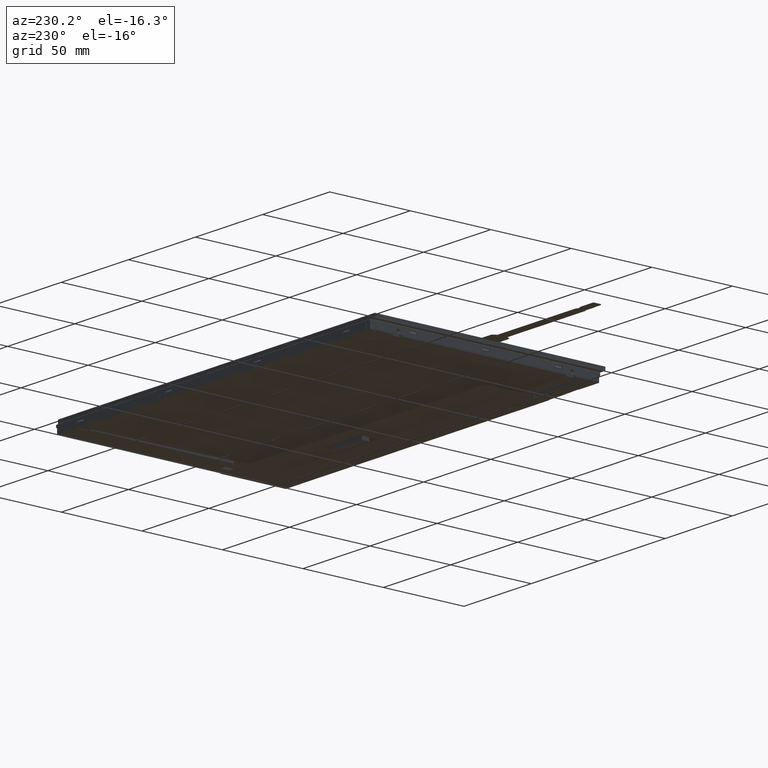
[diagram: clean part render]
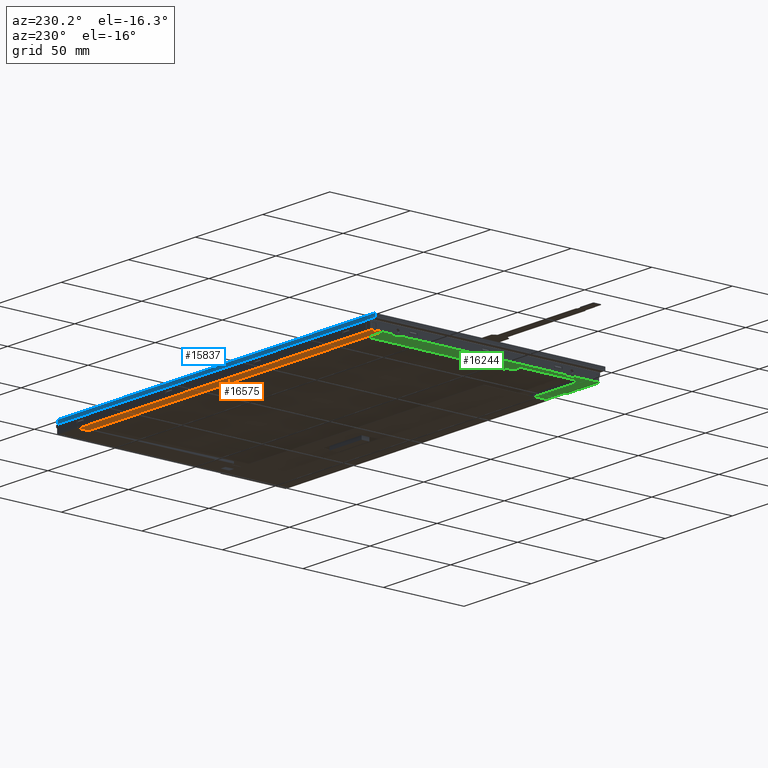
[diagram: same view with three faces highlighted in distinct colors, each labeled with its STEP entity id]
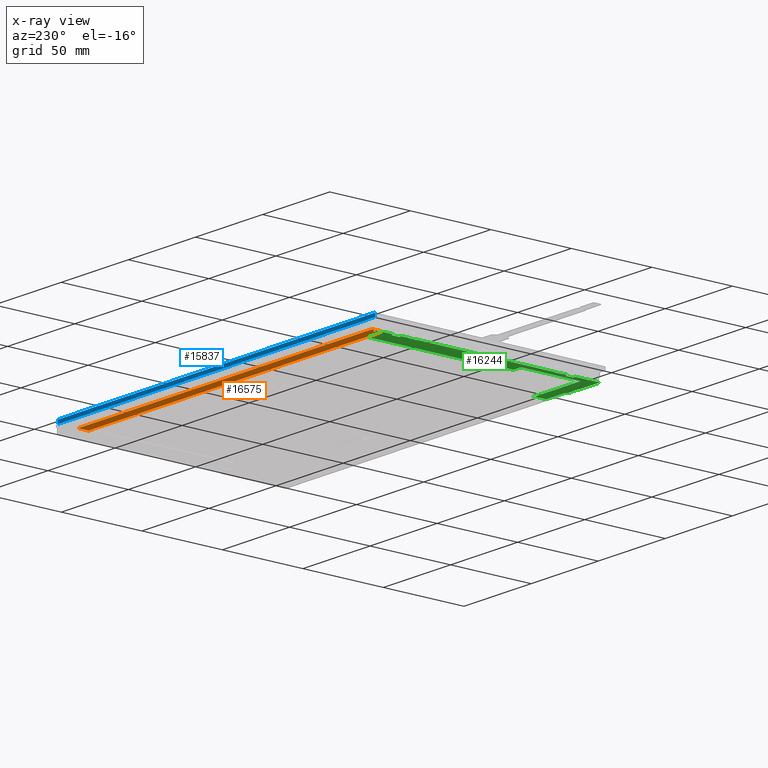
[diagram: x-ray of the same camera — body ghosted, the three highlighted faces saturated]
A machine part, auxiliary view with three faces highlighted in distinct colors.
The next image is the same camera in x-ray (body ghosted, the three faces saturated) — at least one of them is partly hidden behind the body in this view.
Their STEP definitions:

[orange] entity #16575 — the highlighted planar face has unit normal (0, 0, -1).
#390=CIRCLE('',#17676,0.64999999999902);
#480=FACE_BOUND('',#2250,.T.);
#1318=FACE_OUTER_BOUND('',#2249,.T.);
#2249=EDGE_LOOP('',(#14990,#14991,#14992,#14993,#14994,#14995));
#2250=EDGE_LOOP('',(#14996));
#3846=LINE('',#25931,#5941);
#3859=LINE('',#25962,#5954);
#3861=LINE('',#25966,#5956);
#4328=LINE('',#26983,#6423);
#4335=LINE('',#26998,#6430);
#4342=LINE('',#27013,#6437);
#5941=VECTOR('',#20932,10.);
#5954=VECTOR('',#20955,10.);
#5956=VECTOR('',#20959,10.);
#6423=VECTOR('',#21866,10.);
#6430=VECTOR('',#21885,10.);
#6437=VECTOR('',#21908,10.);
#7655=VERTEX_POINT('',#25928);
#7656=VERTEX_POINT('',#25930);
#7669=VERTEX_POINT('',#25960);
#7670=VERTEX_POINT('',#25964);
#7979=VERTEX_POINT('',#26976);
#7981=VERTEX_POINT('',#26982);
#7984=VERTEX_POINT('',#27015);
#9801=EDGE_CURVE('',#7655,#7656,#3846,.T.);
#9818=EDGE_CURVE('',#7669,#7655,#3859,.T.);
#9820=EDGE_CURVE('',#7670,#7669,#3861,.T.);
#10306=EDGE_CURVE('',#7981,#7979,#4328,.T.);
#10315=EDGE_CURVE('',#7981,#7670,#4335,.T.);
#10322=EDGE_CURVE('',#7979,#7656,#4342,.T.);
#10323=EDGE_CURVE('',#7984,#7984,#390,.T.);
#14990=ORIENTED_EDGE('',*,*,#10315,.F.);
#14991=ORIENTED_EDGE('',*,*,#10306,.T.);
#14992=ORIENTED_EDGE('',*,*,#10322,.T.);
#14993=ORIENTED_EDGE('',*,*,#9801,.F.);
#14994=ORIENTED_EDGE('',*,*,#9818,.F.);
#14995=ORIENTED_EDGE('',*,*,#9820,.F.);
#14996=ORIENTED_EDGE('',*,*,#10323,.F.);
#15732=PLANE('',#17675);
#16575=ADVANCED_FACE('',(#1318,#480),#15732,.T.);
#17675=AXIS2_PLACEMENT_3D('',#27014,#21909,#21910);
#17676=AXIS2_PLACEMENT_3D('',#27016,#21911,#21912);
#20932=DIRECTION('',(1.,0.,-4.57459076718222E-16));
#20955=DIRECTION('',(0.,-1.,0.));
#20959=DIRECTION('',(-1.,0.,0.));
#21866=DIRECTION('',(1.,1.38970020865291E-15,0.));
#21885=DIRECTION('',(0.,-1.,0.));
#21908=DIRECTION('',(0.,-1.,0.));
#21909=DIRECTION('center_axis',(0.,0.,-1.));
#21910=DIRECTION('ref_axis',(-1.,0.,0.));
#21911=DIRECTION('center_axis',(2.08218402647327E-16,6.72208825796746E-17,
-1.));
#21912=DIRECTION('ref_axis',(-0.811225738201856,-0.584733102944287,0.));
#25928=CARTESIAN_POINT('',(-115.93,63.8800000000065,-7.15));
#25930=CARTESIAN_POINT('',(103.1008009434,63.8800000000064,-7.1500000000001));
#25931=CARTESIAN_POINT('',(-115.93,63.8800000000064,-7.15));
#25960=CARTESIAN_POINT('',(-115.93,70.1300000000065,-7.15));
#25962=CARTESIAN_POINT('',(-115.93,70.1300000000065,-7.15));
#25964=CARTESIAN_POINT('',(-113.,70.1300000000065,-7.15));
#25966=CARTESIAN_POINT('',(-113.,70.1300000000065,-7.15));
#26976=CARTESIAN_POINT('',(103.1008009434,70.2800000000078,-7.15));
#26982=CARTESIAN_POINT('',(-113.,70.2800000000075,-7.15));
#26983=CARTESIAN_POINT('',(-113.,70.2800000000075,-7.15));
#26998=CARTESIAN_POINT('',(-113.,70.2800000000075,-7.15));
#27013=CARTESIAN_POINT('',(103.1008009434,70.2800000000078,-7.15));
#27014=CARTESIAN_POINT('Origin',(-0.861220648655003,82.6346238207605,-7.15));
#27015=CARTESIAN_POINT('',(-115.04,67.5000000000001,-7.15));
#27016=CARTESIAN_POINT('Origin',(-114.390000000001,67.5000000000091,-7.15));

[blue] entity #15837 — the highlighted planar face has unit normal (-0, 1, 0).
#580=FACE_OUTER_BOUND('',#1432,.T.);
#1432=EDGE_LOOP('',(#10844,#10845,#10846,#10847,#10848,#10849));
#2312=LINE('',#22054,#4407);
#2316=LINE('',#22062,#4411);
#2346=LINE('',#22123,#4441);
#2503=LINE('',#22521,#4598);
#2505=LINE('',#22524,#4600);
#2506=LINE('',#22526,#4601);
#4407=VECTOR('',#17786,10.);
#4411=VECTOR('',#17792,10.);
#4441=VECTOR('',#17842,10.);
#4598=VECTOR('',#18167,10.);
#4600=VECTOR('',#18171,10.);
#4601=VECTOR('',#18174,10.);
#6486=VERTEX_POINT('',#22051);
#6487=VERTEX_POINT('',#22053);
#6489=VERTEX_POINT('',#22059);
#6511=VERTEX_POINT('',#22122);
#6631=VERTEX_POINT('',#22518);
#6632=VERTEX_POINT('',#22520);
#8044=EDGE_CURVE('',#6486,#6487,#2312,.T.);
#8048=EDGE_CURVE('',#6489,#6486,#2316,.T.);
#8078=EDGE_CURVE('',#6511,#6489,#2346,.T.);
#8260=EDGE_CURVE('',#6631,#6632,#2503,.T.);
#8262=EDGE_CURVE('',#6511,#6632,#2505,.T.);
#8263=EDGE_CURVE('',#6487,#6631,#2506,.T.);
#10844=ORIENTED_EDGE('',*,*,#8262,.T.);
#10845=ORIENTED_EDGE('',*,*,#8260,.F.);
#10846=ORIENTED_EDGE('',*,*,#8263,.F.);
#10847=ORIENTED_EDGE('',*,*,#8044,.F.);
#10848=ORIENTED_EDGE('',*,*,#8048,.F.);
#10849=ORIENTED_EDGE('',*,*,#8078,.F.);
#15110=PLANE('',#16725);
#15837=ADVANCED_FACE('',(#580),#15110,.T.);
#16725=AXIS2_PLACEMENT_3D('',#22525,#18172,#18173);
#17786=DIRECTION('',(1.,6.1232339957368E-17,3.74939945665466E-33));
#17792=DIRECTION('',(3.74939945665466E-33,2.29584502165849E-49,-1.));
#17842=DIRECTION('',(-1.,-6.1232339957368E-17,-3.74939945665466E-33));
#18167=DIRECTION('',(1.,6.12323399573682E-17,-6.58431360186346E-17));
#18171=DIRECTION('',(3.74939945665466E-33,2.29584502165849E-49,-1.));
#18172=DIRECTION('center_axis',(-6.12323399573682E-17,1.,1.92538991920162E-33));
#18173=DIRECTION('ref_axis',(1.,6.12323399573682E-17,-6.58431360186346E-17));
#18174=DIRECTION('',(-6.58431360186346E-17,-2.10633936935065E-33,-1.));
#22051=CARTESIAN_POINT('',(-119.56,71.5,-2.1));
#22053=CARTESIAN_POINT('',(-113.789999999999,71.5000000000001,-2.09999999999999));
#22054=CARTESIAN_POINT('',(116.71,71.5,-2.1));
#22059=CARTESIAN_POINT('',(-119.56,71.5,-4.48278199037632E-31));
#22062=CARTESIAN_POINT('',(-119.56,71.5,-4.48278199037632E-31));
#22122=CARTESIAN_POINT('',(116.71,71.5,4.37592410586166E-31));
#22123=CARTESIAN_POINT('',(115.69,71.5,4.33768023140378E-31));
#22518=CARTESIAN_POINT('',(-113.789999999999,71.5000000000001,-2.25999999999999));
#22520=CARTESIAN_POINT('',(116.710000000001,71.5000000000001,-2.26000000000001));
#22521=CARTESIAN_POINT('',(116.710000000001,71.5000000000001,-2.26000000000001));
#22524=CARTESIAN_POINT('',(116.71,71.5,4.37592410586166E-31));
#22525=CARTESIAN_POINT('Origin',(-113.789999999999,71.5000000000001,-2.09999999999999));
#22526=CARTESIAN_POINT('',(-113.789999999999,71.5000000000001,-2.09999999999999));

[green] entity #16244 — the highlighted planar face has unit normal (0, 0, -1).
#297=CIRCLE('',#17057,0.500000000000043);
#298=CIRCLE('',#17060,0.500000000000007);
#299=CIRCLE('',#17063,0.50000000000002);
#329=CIRCLE('',#17188,0.700000000000012);
#331=CIRCLE('',#17191,0.499999999999989);
#332=CIRCLE('',#17203,2.00000000000003);
#349=CIRCLE('',#17306,0.29999999999994);
#350=CIRCLE('',#17307,0.300000000000029);
#351=CIRCLE('',#17308,0.300000000000074);
#352=CIRCLE('',#17309,0.300000000000029);
#987=FACE_OUTER_BOUND('',#1879,.T.);
#1879=EDGE_LOOP('',(#13133,#13134,#13135,#13136,#13137,#13138,#13139,#13140,
#13141,#13142,#13143,#13144,#13145,#13146,#13147,#13148,#13149,#13150,#13151,
#13152,#13153,#13154,#13155,#13156,#13157,#13158,#13159,#13160,#13161,#13162,
#13163,#13164,#13165,#13166,#13167,#13168,#13169,#13170,#13171,#13172,#13173,
#13174,#13175,#13176,#13177,#13178,#13179,#13180));
#2911=LINE('',#23804,#5006);
#2938=LINE('',#23863,#5033);
#3093=LINE('',#24217,#5188);
#3107=LINE('',#24246,#5202);
#3112=LINE('',#24260,#5207);
#3129=LINE('',#24293,#5224);
#3131=LINE('',#24297,#5226);
#3134=LINE('',#24304,#5229);
#3138=LINE('',#24313,#5233);
#3238=LINE('',#24581,#5333);
#3240=LINE('',#24586,#5335);
#3243=LINE('',#24592,#5338);
#3248=LINE('',#24602,#5343);
#3250=LINE('',#24607,#5345);
#3253=LINE('',#24613,#5348);
#3258=LINE('',#24623,#5353);
#3260=LINE('',#24628,#5355);
#3263=LINE('',#24634,#5358);
#3361=LINE('',#24846,#5456);
#3366=LINE('',#24857,#5461);
#3368=LINE('',#24861,#5463);
#3417=LINE('',#24971,#5512);
#3420=LINE('',#24975,#5515);
#3421=LINE('',#24978,#5516);
#3423=LINE('',#24982,#5518);
#3425=LINE('',#24985,#5520);
#3581=LINE('',#25316,#5676);
#3582=LINE('',#25318,#5677);
#3583=LINE('',#25322,#5678);
#3584=LINE('',#25326,#5679);
#3585=LINE('',#25327,#5680);
#3586=LINE('',#25328,#5681);
#3587=LINE('',#25329,#5682);
#3588=LINE('',#25331,#5683);
#3589=LINE('',#25333,#5684);
#3590=LINE('',#25337,#5685);
#3591=LINE('',#25341,#5686);
#3592=LINE('',#25342,#5687);
#5006=VECTOR('',#19073,10.);
#5033=VECTOR('',#19134,10.);
#5188=VECTOR('',#19381,10.);
#5202=VECTOR('',#19403,10.);
#5207=VECTOR('',#19416,10.);
#5224=VECTOR('',#19441,10.);
#5226=VECTOR('',#19445,10.);
#5229=VECTOR('',#19450,10.);
#5233=VECTOR('',#19456,10.);
#5333=VECTOR('',#19720,10.);
#5335=VECTOR('',#19724,10.);
#5338=VECTOR('',#19729,10.);
#5343=VECTOR('',#19736,10.);
#5345=VECTOR('',#19740,10.);
#5348=VECTOR('',#19745,10.);
#5353=VECTOR('',#19752,10.);
#5355=VECTOR('',#19756,10.);
#5358=VECTOR('',#19761,10.);
#5456=VECTOR('',#19947,10.);
#5461=VECTOR('',#19954,10.);
#5463=VECTOR('',#19958,10.);
#5512=VECTOR('',#20057,10.);
#5515=VECTOR('',#20060,10.);
#5516=VECTOR('',#20063,10.);
#5518=VECTOR('',#20067,10.);
#5520=VECTOR('',#20071,10.);
#5676=VECTOR('',#20409,10.);
#5677=VECTOR('',#20410,10.);
#5678=VECTOR('',#20413,10.);
#5679=VECTOR('',#20416,10.);
#5680=VECTOR('',#20417,10.);
#5681=VECTOR('',#20418,10.);
#5682=VECTOR('',#20419,10.);
#5683=VECTOR('',#20420,10.);
#5684=VECTOR('',#20421,10.);
#5685=VECTOR('',#20424,10.);
#5686=VECTOR('',#20427,10.);
#5687=VECTOR('',#20428,10.);
#6969=VERTEX_POINT('',#23801);
#6970=VERTEX_POINT('',#23803);
#6985=VERTEX_POINT('',#23861);
#7138=VERTEX_POINT('',#24215);
#7149=VERTEX_POINT('',#24245);
#7154=VERTEX_POINT('',#24259);
#7166=VERTEX_POINT('',#24292);
#7167=VERTEX_POINT('',#24296);
#7169=VERTEX_POINT('',#24302);
#7170=VERTEX_POINT('',#24303);
#7173=VERTEX_POINT('',#24311);
#7174=VERTEX_POINT('',#24312);
#7178=VERTEX_POINT('',#24334);
#7258=VERTEX_POINT('',#24575);
#7260=VERTEX_POINT('',#24579);
#7262=VERTEX_POINT('',#24584);
#7263=VERTEX_POINT('',#24589);
#7266=VERTEX_POINT('',#24596);
#7268=VERTEX_POINT('',#24600);
#7270=VERTEX_POINT('',#24605);
#7271=VERTEX_POINT('',#24610);
#7274=VERTEX_POINT('',#24617);
#7276=VERTEX_POINT('',#24621);
#7278=VERTEX_POINT('',#24626);
#7279=VERTEX_POINT('',#24631);
#7349=VERTEX_POINT('',#24843);
#7350=VERTEX_POINT('',#24845);
#7354=VERTEX_POINT('',#24854);
#7355=VERTEX_POINT('',#24856);
#7356=VERTEX_POINT('',#24860);
#7358=VERTEX_POINT('',#24866);
#7359=VERTEX_POINT('',#24867);
#7392=VERTEX_POINT('',#24970);
#7393=VERTEX_POINT('',#24973);
#7394=VERTEX_POINT('',#24977);
#7395=VERTEX_POINT('',#24981);
#7479=VERTEX_POINT('',#25315);
#7480=VERTEX_POINT('',#25317);
#7481=VERTEX_POINT('',#25319);
#7482=VERTEX_POINT('',#25321);
#7483=VERTEX_POINT('',#25323);
#7484=VERTEX_POINT('',#25325);
#7485=VERTEX_POINT('',#25330);
#7486=VERTEX_POINT('',#25332);
#7487=VERTEX_POINT('',#25334);
#7488=VERTEX_POINT('',#25336);
#7489=VERTEX_POINT('',#25338);
#7490=VERTEX_POINT('',#25340);
#8758=EDGE_CURVE('',#6970,#6969,#2911,.T.);
#8788=EDGE_CURVE('',#6985,#6969,#2938,.T.);
#8965=EDGE_CURVE('',#7138,#6985,#3093,.T.);
#8979=EDGE_CURVE('',#6970,#7149,#3107,.T.);
#8986=EDGE_CURVE('',#7149,#7154,#3112,.T.);
#9003=EDGE_CURVE('',#7154,#7166,#3129,.T.);
#9005=EDGE_CURVE('',#7166,#7167,#3131,.T.);
#9008=EDGE_CURVE('',#7169,#7170,#3134,.T.);
#9012=EDGE_CURVE('',#7173,#7174,#3138,.T.);
#9024=EDGE_CURVE('',#7174,#7178,#297,.T.);
#9027=EDGE_CURVE('',#7170,#7173,#298,.T.);
#9029=EDGE_CURVE('',#7167,#7169,#299,.T.);
#9142=EDGE_CURVE('',#7258,#7260,#3238,.T.);
#9144=EDGE_CURVE('',#7260,#7262,#3240,.T.);
#9147=EDGE_CURVE('',#7262,#7263,#3243,.T.);
#9152=EDGE_CURVE('',#7266,#7268,#3248,.T.);
#9154=EDGE_CURVE('',#7268,#7270,#3250,.T.);
#9157=EDGE_CURVE('',#7270,#7271,#3253,.T.);
#9162=EDGE_CURVE('',#7274,#7276,#3258,.T.);
#9164=EDGE_CURVE('',#7276,#7278,#3260,.T.);
#9167=EDGE_CURVE('',#7278,#7279,#3263,.T.);
#9273=EDGE_CURVE('',#7349,#7350,#3361,.T.);
#9278=EDGE_CURVE('',#7354,#7355,#3366,.T.);
#9280=EDGE_CURVE('',#7178,#7356,#3368,.T.);
#9283=EDGE_CURVE('',#7358,#7359,#329,.T.);
#9287=EDGE_CURVE('',#7356,#7354,#331,.T.);
#9318=EDGE_CURVE('',#7355,#7349,#332,.T.);
#9335=EDGE_CURVE('',#7392,#7359,#3417,.T.);
#9338=EDGE_CURVE('',#7138,#7393,#3420,.T.);
#9339=EDGE_CURVE('',#7394,#7392,#3421,.T.);
#9341=EDGE_CURVE('',#7393,#7395,#3423,.T.);
#9343=EDGE_CURVE('',#7395,#7394,#3425,.T.);
#9515=EDGE_CURVE('',#7358,#7479,#3581,.T.);
#9516=EDGE_CURVE('',#7480,#7479,#3582,.T.);
#9517=EDGE_CURVE('',#7481,#7480,#349,.T.);
#9518=EDGE_CURVE('',#7482,#7481,#3583,.T.);
#9519=EDGE_CURVE('',#7483,#7482,#350,.T.);
#9520=EDGE_CURVE('',#7484,#7483,#3584,.T.);
#9521=EDGE_CURVE('',#7484,#7258,#3585,.T.);
#9522=EDGE_CURVE('',#7263,#7266,#3586,.T.);
#9523=EDGE_CURVE('',#7271,#7274,#3587,.T.);
#9524=EDGE_CURVE('',#7279,#7485,#3588,.T.);
#9525=EDGE_CURVE('',#7486,#7485,#3589,.T.);
#9526=EDGE_CURVE('',#7487,#7486,#351,.T.);
#9527=EDGE_CURVE('',#7488,#7487,#3590,.T.);
#9528=EDGE_CURVE('',#7489,#7488,#352,.T.);
#9529=EDGE_CURVE('',#7490,#7489,#3591,.T.);
#9530=EDGE_CURVE('',#7490,#7350,#3592,.T.);
#13133=ORIENTED_EDGE('',*,*,#8758,.T.);
#13134=ORIENTED_EDGE('',*,*,#8788,.F.);
#13135=ORIENTED_EDGE('',*,*,#8965,.F.);
#13136=ORIENTED_EDGE('',*,*,#9338,.T.);
#13137=ORIENTED_EDGE('',*,*,#9341,.T.);
#13138=ORIENTED_EDGE('',*,*,#9343,.T.);
#13139=ORIENTED_EDGE('',*,*,#9339,.T.);
#13140=ORIENTED_EDGE('',*,*,#9335,.T.);
#13141=ORIENTED_EDGE('',*,*,#9283,.F.);
#13142=ORIENTED_EDGE('',*,*,#9515,.T.);
#13143=ORIENTED_EDGE('',*,*,#9516,.F.);
#13144=ORIENTED_EDGE('',*,*,#9517,.F.);
#13145=ORIENTED_EDGE('',*,*,#9518,.F.);
#13146=ORIENTED_EDGE('',*,*,#9519,.F.);
#13147=ORIENTED_EDGE('',*,*,#9520,.F.);
#13148=ORIENTED_EDGE('',*,*,#9521,.T.);
#13149=ORIENTED_EDGE('',*,*,#9142,.T.);
#13150=ORIENTED_EDGE('',*,*,#9144,.T.);
#13151=ORIENTED_EDGE('',*,*,#9147,.T.);
#13152=ORIENTED_EDGE('',*,*,#9522,.T.);
#13153=ORIENTED_EDGE('',*,*,#9152,.T.);
#13154=ORIENTED_EDGE('',*,*,#9154,.T.);
#13155=ORIENTED_EDGE('',*,*,#9157,.T.);
#13156=ORIENTED_EDGE('',*,*,#9523,.T.);
#13157=ORIENTED_EDGE('',*,*,#9162,.T.);
#13158=ORIENTED_EDGE('',*,*,#9164,.T.);
#13159=ORIENTED_EDGE('',*,*,#9167,.T.);
#13160=ORIENTED_EDGE('',*,*,#9524,.T.);
#13161=ORIENTED_EDGE('',*,*,#9525,.F.);
#13162=ORIENTED_EDGE('',*,*,#9526,.F.);
#13163=ORIENTED_EDGE('',*,*,#9527,.F.);
#13164=ORIENTED_EDGE('',*,*,#9528,.F.);
#13165=ORIENTED_EDGE('',*,*,#9529,.F.);
#13166=ORIENTED_EDGE('',*,*,#9530,.T.);
#13167=ORIENTED_EDGE('',*,*,#9273,.F.);
#13168=ORIENTED_EDGE('',*,*,#9318,.F.);
#13169=ORIENTED_EDGE('',*,*,#9278,.F.);
#13170=ORIENTED_EDGE('',*,*,#9287,.F.);
#13171=ORIENTED_EDGE('',*,*,#9280,.F.);
#13172=ORIENTED_EDGE('',*,*,#9024,.F.);
#13173=ORIENTED_EDGE('',*,*,#9012,.F.);
#13174=ORIENTED_EDGE('',*,*,#9027,.F.);
#13175=ORIENTED_EDGE('',*,*,#9008,.F.);
#13176=ORIENTED_EDGE('',*,*,#9029,.F.);
#13177=ORIENTED_EDGE('',*,*,#9005,.F.);
#13178=ORIENTED_EDGE('',*,*,#9003,.F.);
#13179=ORIENTED_EDGE('',*,*,#8986,.F.);
#13180=ORIENTED_EDGE('',*,*,#8979,.F.);
#15429=PLANE('',#17305);
#16244=ADVANCED_FACE('',(#987),#15429,.T.);
#17057=AXIS2_PLACEMENT_3D('',#24335,#19480,#19481);
#17060=AXIS2_PLACEMENT_3D('',#24340,#19487,#19488);
#17063=AXIS2_PLACEMENT_3D('',#24343,#19493,#19494);
#17188=AXIS2_PLACEMENT_3D('',#24868,#19963,#19964);
#17191=AXIS2_PLACEMENT_3D('',#24875,#19971,#19972);
#17203=AXIS2_PLACEMENT_3D('',#24938,#20024,#20025);
#17305=AXIS2_PLACEMENT_3D('',#25314,#20407,#20408);
#17306=AXIS2_PLACEMENT_3D('',#25320,#20411,#20412);
#17307=AXIS2_PLACEMENT_3D('',#25324,#20414,#20415);
#17308=AXIS2_PLACEMENT_3D('',#25335,#20422,#20423);
#17309=AXIS2_PLACEMENT_3D('',#25339,#20425,#20426);
#19073=DIRECTION('',(0.,-1.,0.));
#19134=DIRECTION('',(1.,0.,0.));
#19381=DIRECTION('',(0.,1.,0.));
#19403=DIRECTION('',(-1.,0.,0.));
#19416=DIRECTION('',(0.,-1.,0.));
#19441=DIRECTION('',(-1.,0.,0.));
#19445=DIRECTION('',(0.,1.,0.));
#19450=DIRECTION('',(1.,0.,0.));
#19456=DIRECTION('',(0.,1.,0.));
#19480=DIRECTION('center_axis',(-1.34015774165459E-15,1.3401577416546E-15,
-1.));
#19481=DIRECTION('ref_axis',(-7.1054273576004E-14,1.,1.11022302462506E-15));
#19487=DIRECTION('center_axis',(-1.34015774165448E-15,1.3401577416545E-15,
1.));
#19488=DIRECTION('ref_axis',(1.,-2.66453525910034E-14,1.11022302462514E-15));
#19493=DIRECTION('center_axis',(-1.3401577416545E-15,1.34015774165451E-15,
-1.));
#19494=DIRECTION('ref_axis',(-3.55271367880036E-14,1.,1.11022302462511E-15));
#19720=DIRECTION('',(1.,0.,0.));
#19724=DIRECTION('',(0.,1.,0.));
#19729=DIRECTION('',(-1.,0.,0.));
#19736=DIRECTION('',(1.,0.,0.));
#19740=DIRECTION('',(0.,1.,0.));
#19745=DIRECTION('',(-1.,0.,0.));
#19752=DIRECTION('',(1.,0.,0.));
#19756=DIRECTION('',(0.,1.,0.));
#19761=DIRECTION('',(-1.,0.,0.));
#19947=DIRECTION('',(-1.,0.,0.));
#19954=DIRECTION('',(0.,1.,0.));
#19958=DIRECTION('',(1.,0.,0.));
#19963=DIRECTION('center_axis',(9.57255529753217E-16,9.57255529753241E-16,
1.));
#19964=DIRECTION('ref_axis',(0.,-1.,7.93016446160813E-16));
#19971=DIRECTION('center_axis',(-1.34015774165437E-15,1.34015774165439E-15,
1.));
#19972=DIRECTION('ref_axis',(1.,3.55271367880058E-14,1.11022302462518E-15));
#20024=DIRECTION('center_axis',(-3.35039435413626E-16,-3.35039435413624E-16,
1.));
#20025=DIRECTION('ref_axis',(1.77635683940023E-14,1.,2.77555756156285E-16));
#20057=DIRECTION('',(-1.,0.,0.));
#20060=DIRECTION('',(-1.,0.,0.));
#20063=DIRECTION('',(0.,-1.,0.));
#20067=DIRECTION('',(0.,1.,0.));
#20071=DIRECTION('',(-1.,0.,0.));
#20407=DIRECTION('center_axis',(0.,0.,-1.));
#20408=DIRECTION('ref_axis',(-1.,0.,0.));
#20409=DIRECTION('',(0.,1.,0.));
#20410=DIRECTION('',(-1.,0.,0.));
#20411=DIRECTION('center_axis',(-2.23359623609014E-15,2.23359623609E-15,
-1.));
#20412=DIRECTION('ref_axis',(-1.7763568394006E-13,-1.,-1.85037170770896E-15));
#20413=DIRECTION('',(0.,-1.,0.));
#20414=DIRECTION('center_axis',(2.23359623609114E-15,2.23359623609107E-15,
-1.));
#20415=DIRECTION('ref_axis',(1.,8.88178419700039E-14,1.85037170770841E-15));
#20416=DIRECTION('',(1.,0.,0.));
#20417=DIRECTION('',(0.,1.,0.));
#20418=DIRECTION('',(0.,1.,0.));
#20419=DIRECTION('',(0.,1.,0.));
#20420=DIRECTION('',(0.,1.,0.));
#20421=DIRECTION('',(-1.,0.,0.));
#20422=DIRECTION('center_axis',(-4.46719247218315E-15,4.46719247218288E-15,
-1.));
#20423=DIRECTION('ref_axis',(2.96059473233303E-13,-1.,-4.62592926927035E-15));
#20424=DIRECTION('',(0.,-1.,0.));
#20425=DIRECTION('center_axis',(2.23359623609114E-15,2.23359623609107E-15,
-1.));
#20426=DIRECTION('ref_axis',(1.,8.88178419700039E-14,1.85037170770841E-15));
#20427=DIRECTION('',(1.,0.,0.));
#20428=DIRECTION('',(0.,1.,0.));
#23801=CARTESIAN_POINT('',(-77.83,-69.5699999999934,-7.26));
#23803=CARTESIAN_POINT('',(-77.83,-61.5899999999931,-7.26));
#23804=CARTESIAN_POINT('',(-77.83,6.27000000000662,-7.26));
#23861=CARTESIAN_POINT('',(-92.0500000000001,-69.5699999999934,-7.26));
#23863=CARTESIAN_POINT('',(-88.894407034355,-69.5699999999934,-7.26));
#24215=CARTESIAN_POINT('',(-92.0500000000001,-70.9399999999935,-7.26));
#24217=CARTESIAN_POINT('',(-92.0500000000001,-3.41249999999347,-7.26));
#24245=CARTESIAN_POINT('',(-78.33,-61.5899999999931,-7.26));
#24246=CARTESIAN_POINT('',(-87.4087499999975,-61.5899999999931,-7.26));
#24259=CARTESIAN_POINT('',(-78.33,-62.2899999999935,-7.26));
#24260=CARTESIAN_POINT('',(-78.33,-61.5899999999935,-7.26));
#24292=CARTESIAN_POINT('',(-111.86,-62.2899999999935,-7.26));
#24293=CARTESIAN_POINT('',(-78.33,-62.2899999999935,-7.26));
#24296=CARTESIAN_POINT('',(-111.86,-25.9499999999935,-7.26));
#24297=CARTESIAN_POINT('',(-111.86,-62.2899999999935,-7.26));
#24302=CARTESIAN_POINT('',(-111.36,-25.4499999999935,-7.26));
#24303=CARTESIAN_POINT('',(-106.86,-25.4499999999935,-7.26));
#24304=CARTESIAN_POINT('',(-111.36,-25.4499999999935,-7.26));
#24311=CARTESIAN_POINT('',(-106.36,-24.9499999999935,-7.26));
#24312=CARTESIAN_POINT('',(-106.36,-21.6499999999935,-7.26));
#24313=CARTESIAN_POINT('',(-106.36,-24.9499999999935,-7.26));
#24334=CARTESIAN_POINT('',(-105.86,-21.1499999999935,-7.26));
#24335=CARTESIAN_POINT('Origin',(-105.86,-21.6499999999935,-7.26));
#24340=CARTESIAN_POINT('Origin',(-106.86,-24.9499999999935,-7.26));
#24343=CARTESIAN_POINT('Origin',(-111.36,-25.9499999999935,-7.26));
#24575=CARTESIAN_POINT('',(-116.08,-47.3499999999935,-7.26));
#24579=CARTESIAN_POINT('',(-115.78,-47.3499999999935,-7.26));
#24581=CARTESIAN_POINT('',(-116.08,-47.3499999999935,-7.26));
#24584=CARTESIAN_POINT('',(-115.78,-42.3499999999935,-7.26));
#24586=CARTESIAN_POINT('',(-115.78,-47.3499999999935,-7.26));
#24589=CARTESIAN_POINT('',(-116.08,-42.3499999999935,-7.26));
#24592=CARTESIAN_POINT('',(-115.78,-42.3499999999935,-7.26));
#24596=CARTESIAN_POINT('',(-116.08,-2.34999999999348,-7.26));
#24600=CARTESIAN_POINT('',(-115.78,-2.34999999999348,-7.26));
#24602=CARTESIAN_POINT('',(-116.08,-2.34999999999348,-7.26));
#24605=CARTESIAN_POINT('',(-115.78,2.65000000000652,-7.26));
#24607=CARTESIAN_POINT('',(-115.78,-2.34999999999348,-7.26));
#24610=CARTESIAN_POINT('',(-116.08,2.65000000000652,-7.26));
#24613=CARTESIAN_POINT('',(-115.78,2.65000000000652,-7.26));
#24617=CARTESIAN_POINT('',(-116.08,42.6500000000065,-7.26));
#24621=CARTESIAN_POINT('',(-115.78,42.6500000000065,-7.26));
#24623=CARTESIAN_POINT('',(-116.08,42.6500000000065,-7.26));
#24626=CARTESIAN_POINT('',(-115.78,47.6500000000065,-7.26));
#24628=CARTESIAN_POINT('',(-115.78,42.6500000000065,-7.26));
#24631=CARTESIAN_POINT('',(-116.08,47.6500000000065,-7.26));
#24634=CARTESIAN_POINT('',(-115.78,47.6500000000065,-7.26));
#24843=CARTESIAN_POINT('',(-106.56,63.5800000000065,-7.26));
#24845=CARTESIAN_POINT('',(-116.08,63.5800000000065,-7.26));
#24846=CARTESIAN_POINT('',(-106.56,63.5800000000065,-7.26));
#24854=CARTESIAN_POINT('',(-104.56,-20.6499999999935,-7.26));
#24856=CARTESIAN_POINT('',(-104.56,61.5800000000065,-7.26));
#24857=CARTESIAN_POINT('',(-104.56,-20.6499999999935,-7.26));
#24860=CARTESIAN_POINT('',(-105.06,-21.1499999999935,-7.26));
#24861=CARTESIAN_POINT('',(-105.86,-21.1499999999935,-7.26));
#24866=CARTESIAN_POINT('',(-116.08,-70.2399999999935,-7.26));
#24867=CARTESIAN_POINT('',(-115.38,-70.9399999999935,-7.26));
#24868=CARTESIAN_POINT('Origin',(-115.38,-70.2399999999935,-7.26));
#24875=CARTESIAN_POINT('Origin',(-105.06,-20.6499999999935,-7.26));
#24938=CARTESIAN_POINT('Origin',(-106.56,61.5800000000065,-7.26));
#24970=CARTESIAN_POINT('',(-100.5,-70.9399999999935,-7.26));
#24971=CARTESIAN_POINT('',(-100.5,-70.9399999999935,-7.26));
#24973=CARTESIAN_POINT('',(-95.5,-70.9399999999935,-7.26));
#24975=CARTESIAN_POINT('',(-92.05,-70.9399999999935,-7.26));
#24977=CARTESIAN_POINT('',(-100.5,-70.6399999999935,-7.26));
#24978=CARTESIAN_POINT('',(-100.5,-70.6399999999935,-7.26));
#24981=CARTESIAN_POINT('',(-95.5,-70.6399999999935,-7.26));
#24982=CARTESIAN_POINT('',(-95.5,-70.9399999999935,-7.26));
#24985=CARTESIAN_POINT('',(-95.5,-70.6399999999935,-7.26));
#25314=CARTESIAN_POINT('Origin',(-92.93,63.5800000000065,-7.26));
#25315=CARTESIAN_POINT('',(-116.08,-55.7499999999935,-7.26));
#25316=CARTESIAN_POINT('',(-116.08,-70.2399999999935,-7.26));
#25317=CARTESIAN_POINT('',(-114.7,-55.7499999999935,-7.26));
#25318=CARTESIAN_POINT('',(-114.7,-55.7499999999935,-7.26));
#25319=CARTESIAN_POINT('',(-114.4,-55.4499999999935,-7.26));
#25320=CARTESIAN_POINT('Origin',(-114.7,-55.4499999999936,-7.26));
#25321=CARTESIAN_POINT('',(-114.4,-51.2499999999935,-7.26));
#25322=CARTESIAN_POINT('',(-114.4,-51.2499999999935,-7.26));
#25323=CARTESIAN_POINT('',(-114.7,-50.9499999999935,-7.26));
#25324=CARTESIAN_POINT('Origin',(-114.7,-51.2499999999935,-7.26));
#25325=CARTESIAN_POINT('',(-116.08,-50.9499999999935,-7.26));
#25326=CARTESIAN_POINT('',(-116.08,-50.9499999999935,-7.26));
#25327=CARTESIAN_POINT('',(-116.08,-50.9499999999935,-7.26));
#25328=CARTESIAN_POINT('',(-116.08,-42.3499999999935,-7.26));
#25329=CARTESIAN_POINT('',(-116.08,2.65000000000652,-7.26));
#25330=CARTESIAN_POINT('',(-116.08,52.2500000000065,-7.26));
#25331=CARTESIAN_POINT('',(-116.08,47.6500000000065,-7.26));
#25332=CARTESIAN_POINT('',(-114.7,52.2500000000065,-7.26));
#25333=CARTESIAN_POINT('',(-114.7,52.2500000000065,-7.26));
#25334=CARTESIAN_POINT('',(-114.4,52.5500000000065,-7.26));
#25335=CARTESIAN_POINT('Origin',(-114.7,52.5500000000066,-7.26));
#25336=CARTESIAN_POINT('',(-114.4,56.7500000000065,-7.26));
#25337=CARTESIAN_POINT('',(-114.4,56.7500000000065,-7.26));
#25338=CARTESIAN_POINT('',(-114.7,57.0500000000065,-7.26));
#25339=CARTESIAN_POINT('Origin',(-114.7,56.7500000000065,-7.26));
#25340=CARTESIAN_POINT('',(-116.08,57.0500000000065,-7.26));
#25341=CARTESIAN_POINT('',(-116.08,57.0500000000065,-7.26));
#25342=CARTESIAN_POINT('',(-116.08,57.0500000000065,-7.26));